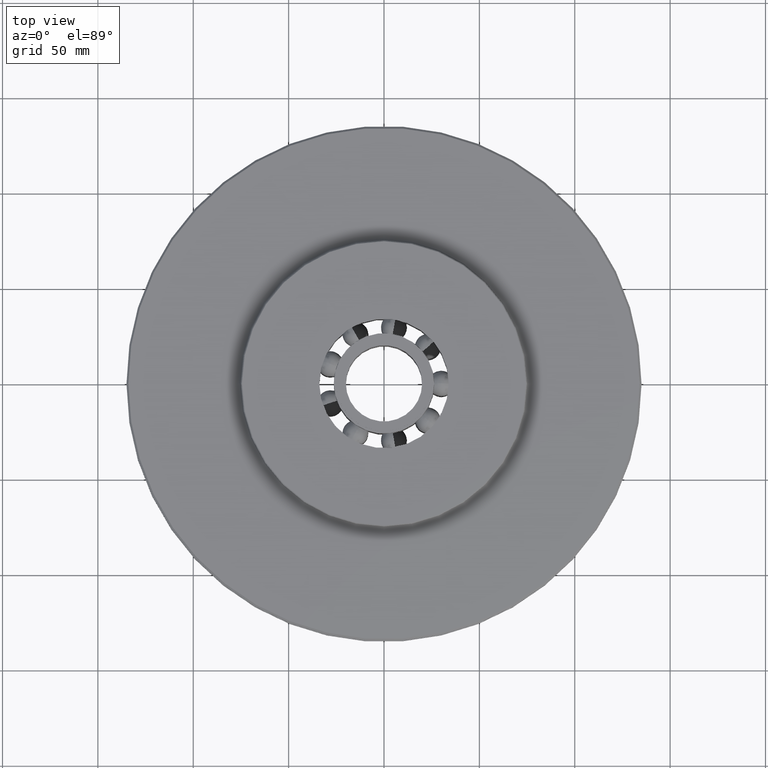
[diagram: clean part render]
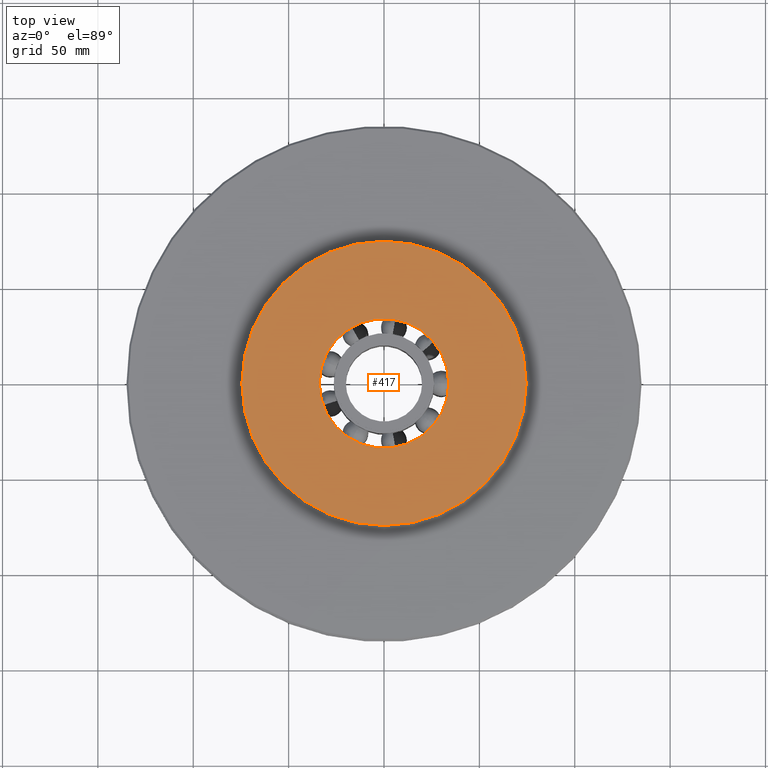
[diagram: same view with one face highlighted and labeled with its STEP entity id]
A machine part, top view. The second image highlights one B-rep face of the part: STEP entity #417.
In plain terms, the highlighted planar face has unit normal (0, 0, 1).
Its self-contained STEP definition (entity closure, byte-faithful):
#417=ADVANCED_FACE('',(#863,#864),#865,.T.);
#863=FACE_BOUND('',#1313,.T.);
#864=FACE_OUTER_BOUND('',#1314,.T.);
#865=PLANE('',#1315);
#1313=EDGE_LOOP('',(#2727,#2728));
#1314=EDGE_LOOP('',(#2729,#2730));
#1315=AXIS2_PLACEMENT_3D('',#2731,#2732,#2733);
#2727=ORIENTED_EDGE('',*,*,#3345,.T.);
#2728=ORIENTED_EDGE('',*,*,#3068,.T.);
#2729=ORIENTED_EDGE('',*,*,#2960,.T.);
#2730=ORIENTED_EDGE('',*,*,#3391,.T.);
#2731=CARTESIAN_POINT('',(37.25,0.0,19.5));
#2732=DIRECTION('',(0.0,0.0,1.0));
#2733=DIRECTION('',(1.0,0.0,0.0));
#2960=EDGE_CURVE('',#3651,#3655,#3657,.T.);
#3068=EDGE_CURVE('',#3837,#3835,#3838,.T.);
#3345=EDGE_CURVE('',#3835,#3837,#4250,.T.);
#3391=EDGE_CURVE('',#3655,#3651,#4296,.T.);
#3651=VERTEX_POINT('',#6080);
#3655=VERTEX_POINT('',#6085);
#3657=CIRCLE('',#6088,74.5);
#3835=VERTEX_POINT('',#7136);
#3837=VERTEX_POINT('',#7139);
#3838=CIRCLE('',#7140,33.95);
#4250=CIRCLE('',#9977,33.95);
#4296=CIRCLE('',#10411,74.5);
#6080=CARTESIAN_POINT('',(74.5,0.0,19.5));
#6085=CARTESIAN_POINT('',(-74.5,9.12361865364778E-015,19.5));
#6088=AXIS2_PLACEMENT_3D('',#10636,#10637,#10638);
#7136=CARTESIAN_POINT('',(33.95,0.0,19.5));
#7139=CARTESIAN_POINT('',(-33.95,4.15767588310526E-015,19.5));
#7140=AXIS2_PLACEMENT_3D('',#10782,#10783,#10784);
#9977=AXIS2_PLACEMENT_3D('',#11071,#11072,#11073);
#10411=AXIS2_PLACEMENT_3D('',#11095,#11096,#11097);
#10636=CARTESIAN_POINT('',(0.0,0.0,19.5));
#10637=DIRECTION('',(0.0,0.0,1.0));
#10638=DIRECTION('',(1.0,0.0,0.0));
#10782=CARTESIAN_POINT('',(0.0,0.0,19.5));
#10783=DIRECTION('',(0.0,0.0,-1.0));
#10784=DIRECTION('',(1.0,0.0,0.0));
#11071=CARTESIAN_POINT('',(0.0,0.0,19.5));
#11072=DIRECTION('',(0.0,0.0,-1.0));
#11073=DIRECTION('',(1.0,0.0,0.0));
#11095=CARTESIAN_POINT('',(0.0,0.0,19.5));
#11096=DIRECTION('',(0.0,0.0,1.0));
#11097=DIRECTION('',(1.0,0.0,0.0));